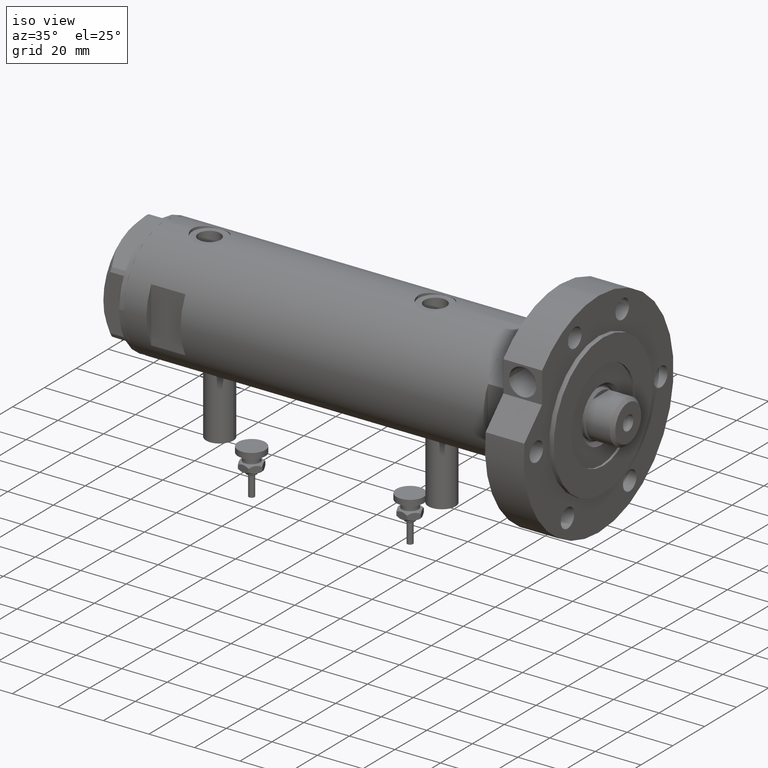
[diagram: clean part render]
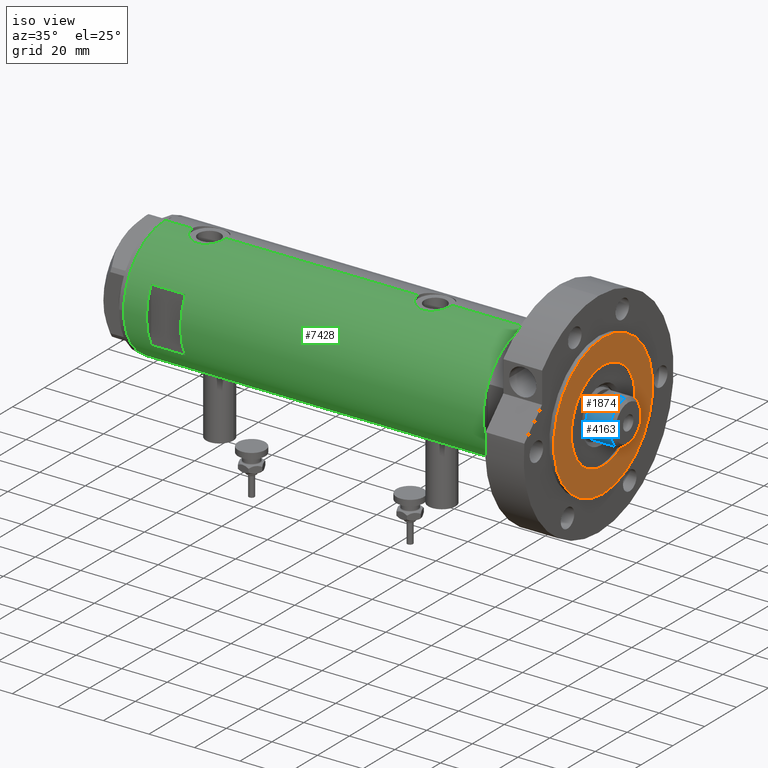
[diagram: same view with three faces highlighted in distinct colors, each labeled with its STEP entity id]
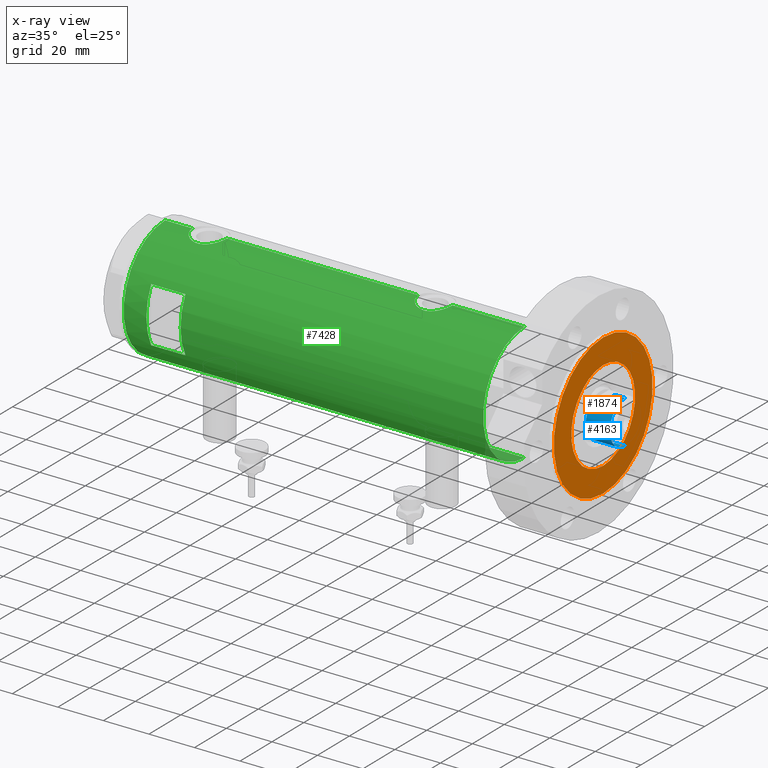
[diagram: x-ray of the same camera — body ghosted, the three highlighted faces saturated]
A machine part, iso view with three faces highlighted in distinct colors.
The next image is the same camera in x-ray (body ghosted, the three faces saturated) — at least one of them is partly hidden behind the body in this view.
Their STEP definitions:

[orange] entity #1874 — the highlighted planar face has unit normal (1, 0, -0).
#185 = VERTEX_POINT ( 'NONE', #7842 ) ;
#858 = CARTESIAN_POINT ( 'NONE',  ( 0.000000000000000000, 0.000000000000000000, 19.00000000000000355 ) ) ;
#931 = CARTESIAN_POINT ( 'NONE',  ( 0.000000000000000000, 0.000000000000000000, 19.00000000000000355 ) ) ;
#1252 = EDGE_CURVE ( 'NONE', #185, #3345, #3423, .T. ) ;
#1304 = EDGE_CURVE ( 'NONE', #3345, #185, #3547, .T. ) ;
#1526 = DIRECTION ( 'NONE',  ( 0.000000000000000000, 0.000000000000000000, 1.000000000000000000 ) ) ;
#1654 = CARTESIAN_POINT ( 'NONE',  ( 20.00000000000000000, 0.000000000000000000, 19.00000000000000355 ) ) ;
#1834 = CIRCLE ( 'NONE', #2470, 31.00000000000000711 ) ;
#1874 = ADVANCED_FACE ( 'NONE', ( #3766, #6315 ), #2563, .T. ) ;
#2054 = CARTESIAN_POINT ( 'NONE',  ( 0.000000000000000000, 0.000000000000000000, 19.00000000000000355 ) ) ;
#2205 = EDGE_LOOP ( 'NONE', ( #3229, #6290 ) ) ;
#2354 = CIRCLE ( 'NONE', #6167, 31.00000000000000711 ) ;
#2470 = AXIS2_PLACEMENT_3D ( 'NONE', #931, #5157, #5111 ) ;
#2495 = EDGE_LOOP ( 'NONE', ( #4160, #5123 ) ) ;
#2563 = PLANE ( 'NONE',  #3946 ) ;
#3033 = VERTEX_POINT ( 'NONE', #4011 ) ;
#3165 = DIRECTION ( 'NONE',  ( 1.000000000000000000, 0.000000000000000000, -0.000000000000000000 ) ) ;
#3229 = ORIENTED_EDGE ( 'NONE', *, *, #1304, .F. ) ;
#3246 = VERTEX_POINT ( 'NONE', #3701 ) ;
#3345 = VERTEX_POINT ( 'NONE', #1654 ) ;
#3423 = CIRCLE ( 'NONE', #7025, 20.00000000000000000 ) ;
#3547 = CIRCLE ( 'NONE', #4320, 20.00000000000000000 ) ;
#3628 = DIRECTION ( 'NONE',  ( 1.000000000000000000, 0.000000000000000000, 0.000000000000000000 ) ) ;
#3701 = CARTESIAN_POINT ( 'NONE',  ( 31.00000000000000711, 3.796405077356795904E-15, 19.00000000000000355 ) ) ;
#3766 = FACE_BOUND ( 'NONE', #2205, .T. ) ;
#3946 = AXIS2_PLACEMENT_3D ( 'NONE', #2054, #4389, #3165 ) ;
#4011 = CARTESIAN_POINT ( 'NONE',  ( -31.00000000000000711, 0.000000000000000000, 19.00000000000000355 ) ) ;
#4160 = ORIENTED_EDGE ( 'NONE', *, *, #6649, .T. ) ;
#4320 = AXIS2_PLACEMENT_3D ( 'NONE', #6863, #7312, #5622 ) ;
#4389 = DIRECTION ( 'NONE',  ( 0.000000000000000000, 0.000000000000000000, 1.000000000000000000 ) ) ;
#4424 = DIRECTION ( 'NONE',  ( 1.000000000000000000, 0.000000000000000000, 0.000000000000000000 ) ) ;
#4904 = DIRECTION ( 'NONE',  ( 0.000000000000000000, 0.000000000000000000, 1.000000000000000000 ) ) ;
#5111 = DIRECTION ( 'NONE',  ( 1.000000000000000000, 0.000000000000000000, 0.000000000000000000 ) ) ;
#5123 = ORIENTED_EDGE ( 'NONE', *, *, #7117, .T. ) ;
#5157 = DIRECTION ( 'NONE',  ( 0.000000000000000000, 0.000000000000000000, 1.000000000000000000 ) ) ;
#5622 = DIRECTION ( 'NONE',  ( 1.000000000000000000, 0.000000000000000000, 0.000000000000000000 ) ) ;
#6167 = AXIS2_PLACEMENT_3D ( 'NONE', #858, #1526, #4424 ) ;
#6290 = ORIENTED_EDGE ( 'NONE', *, *, #1252, .F. ) ;
#6315 = FACE_OUTER_BOUND ( 'NONE', #2495, .T. ) ;
#6649 = EDGE_CURVE ( 'NONE', #3033, #3246, #1834, .T. ) ;
#6863 = CARTESIAN_POINT ( 'NONE',  ( 0.000000000000000000, 0.000000000000000000, 19.00000000000000355 ) ) ;
#7025 = AXIS2_PLACEMENT_3D ( 'NONE', #7397, #4904, #3628 ) ;
#7117 = EDGE_CURVE ( 'NONE', #3246, #3033, #2354, .T. ) ;
#7312 = DIRECTION ( 'NONE',  ( 0.000000000000000000, 0.000000000000000000, 1.000000000000000000 ) ) ;
#7397 = CARTESIAN_POINT ( 'NONE',  ( 0.000000000000000000, 0.000000000000000000, 19.00000000000000355 ) ) ;
#7842 = CARTESIAN_POINT ( 'NONE',  ( -20.00000000000000000, 2.449293598294706513E-15, 19.00000000000000355 ) ) ;

[blue] entity #4163 — the highlighted cylindrical surface (edge-blend (fillet) strip) has radius 9.5 mm, axis along (-1, -0, 0).
#58 = VERTEX_POINT ( 'NONE', #2033 ) ;
#226 = CIRCLE ( 'NONE', #5994, 9.500000000000001776 ) ;
#231 = CARTESIAN_POINT ( 'NONE',  ( 0.000000000000000000, 0.000000000000000000, 167.6000000000000227 ) ) ;
#362 = VECTOR ( 'NONE', #472, 1000.000000000000000 ) ;
#463 = ORIENTED_EDGE ( 'NONE', *, *, #2480, .F. ) ;
#472 = DIRECTION ( 'NONE',  ( -0.000000000000000000, -0.000000000000000000, -1.000000000000000000 ) ) ;
#861 = DIRECTION ( 'NONE',  ( 1.000000000000000000, 0.000000000000000000, 0.000000000000000000 ) ) ;
#892 = CARTESIAN_POINT ( 'NONE',  ( -9.500000000000001776, 0.000000000000000000, 173.6000000000000227 ) ) ;
#901 = VERTEX_POINT ( 'NONE', #6189 ) ;
#912 = DIRECTION ( 'NONE',  ( 0.000000000000000000, 0.000000000000000000, 1.000000000000000000 ) ) ;
#952 = CARTESIAN_POINT ( 'NONE',  ( 0.000000000000000000, 0.000000000000000000, 173.6000000000000227 ) ) ;
#955 = CARTESIAN_POINT ( 'NONE',  ( -7.982950582334829015, -5.150000000000001243, 173.6000000000000227 ) ) ;
#1081 = EDGE_CURVE ( 'NONE', #2884, #1855, #226, .T. ) ;
#1098 = EDGE_CURVE ( 'NONE', #1200, #58, #3514, .T. ) ;
#1145 = LINE ( 'NONE', #6673, #4315 ) ;
#1163 = EDGE_CURVE ( 'NONE', #58, #5889, #2038, .T. ) ;
#1200 = VERTEX_POINT ( 'NONE', #1768 ) ;
#1530 = AXIS2_PLACEMENT_3D ( 'NONE', #231, #912, #5226 ) ;
#1581 = AXIS2_PLACEMENT_3D ( 'NONE', #7421, #1880, #7362 ) ;
#1590 = ORIENTED_EDGE ( 'NONE', *, *, #4227, .T. ) ;
#1611 = CARTESIAN_POINT ( 'NONE',  ( 7.982950582334834344, -5.150000000000034994, 167.6000000000000227 ) ) ;
#1732 = DIRECTION ( 'NONE',  ( 1.000000000000000000, 0.000000000000000000, 0.000000000000000000 ) ) ;
#1768 = CARTESIAN_POINT ( 'NONE',  ( -7.982950582334825462, -5.150000000000003020, 173.6000000000000227 ) ) ;
#1800 = ORIENTED_EDGE ( 'NONE', *, *, #1163, .T. ) ;
#1855 = VERTEX_POINT ( 'NONE', #3185 ) ;
#1880 = DIRECTION ( 'NONE',  ( 0.000000000000000000, 0.000000000000000000, 1.000000000000000000 ) ) ;
#1998 = CARTESIAN_POINT ( 'NONE',  ( 9.500000000000001776, 1.163414459189985682E-15, 173.6000000000000227 ) ) ;
#2033 = CARTESIAN_POINT ( 'NONE',  ( -7.982950582334825462, -5.150000000000042988, 167.6000000000000227 ) ) ;
#2038 = CIRCLE ( 'NONE', #1530, 9.500000000000001776 ) ;
#2069 = EDGE_CURVE ( 'NONE', #2992, #1200, #4188, .T. ) ;
#2454 = ORIENTED_EDGE ( 'NONE', *, *, #6101, .T. ) ;
#2480 = EDGE_CURVE ( 'NONE', #5648, #5889, #1145, .T. ) ;
#2655 = AXIS2_PLACEMENT_3D ( 'NONE', #952, #6977, #861 ) ;
#2659 = DIRECTION ( 'NONE',  ( -1.000000000000000000, 0.000000000000000000, 0.000000000000000000 ) ) ;
#2742 = CARTESIAN_POINT ( 'NONE',  ( 0.000000000000000000, 0.000000000000000000, 173.6000000000000227 ) ) ;
#2884 = VERTEX_POINT ( 'NONE', #3020 ) ;
#2992 = VERTEX_POINT ( 'NONE', #3101 ) ;
#3020 = CARTESIAN_POINT ( 'NONE',  ( 9.500000000000001776, 1.163414459189985682E-15, 178.2000000000000171 ) ) ;
#3101 = CARTESIAN_POINT ( 'NONE',  ( -9.500000000000000000, 0.000000000000000000, 173.6000000000000227 ) ) ;
#3185 = CARTESIAN_POINT ( 'NONE',  ( -9.500000000000001776, 0.000000000000000000, 178.2000000000000171 ) ) ;
#3328 = CIRCLE ( 'NONE', #1581, 9.500000000000000000 ) ;
#3514 = LINE ( 'NONE', #955, #362 ) ;
#3613 = ORIENTED_EDGE ( 'NONE', *, *, #2069, .T. ) ;
#3755 = CARTESIAN_POINT ( 'NONE',  ( 7.982950582334832568, -5.149999999999997691, 173.6000000000000227 ) ) ;
#3758 = DIRECTION ( 'NONE',  ( -0.000000000000000000, -0.000000000000000000, -1.000000000000000000 ) ) ;
#3937 = LINE ( 'NONE', #892, #5887 ) ;
#3964 = VECTOR ( 'NONE', #3758, 1000.000000000000000 ) ;
#4050 = ORIENTED_EDGE ( 'NONE', *, *, #1081, .T. ) ;
#4075 = DIRECTION ( 'NONE',  ( -0.000000000000000000, -0.000000000000000000, -1.000000000000000000 ) ) ;
#4163 = ADVANCED_FACE ( 'NONE', ( #4623 ), #7591, .T. ) ;
#4188 = CIRCLE ( 'NONE', #2655, 9.500000000000000000 ) ;
#4227 = EDGE_CURVE ( 'NONE', #1855, #2992, #3937, .T. ) ;
#4315 = VECTOR ( 'NONE', #4075, 1000.000000000000000 ) ;
#4479 = EDGE_CURVE ( 'NONE', #2884, #901, #7472, .T. ) ;
#4623 = FACE_OUTER_BOUND ( 'NONE', #7480, .T. ) ;
#4675 = CARTESIAN_POINT ( 'NONE',  ( 0.000000000000000000, 0.000000000000000000, 178.2000000000000171 ) ) ;
#5226 = DIRECTION ( 'NONE',  ( 1.000000000000000000, 0.000000000000000000, 0.000000000000000000 ) ) ;
#5272 = DIRECTION ( 'NONE',  ( 0.000000000000000000, 0.000000000000000000, -1.000000000000000000 ) ) ;
#5648 = VERTEX_POINT ( 'NONE', #3755 ) ;
#5778 = ORIENTED_EDGE ( 'NONE', *, *, #4479, .F. ) ;
#5866 = DIRECTION ( 'NONE',  ( -0.000000000000000000, -0.000000000000000000, -1.000000000000000000 ) ) ;
#5887 = VECTOR ( 'NONE', #5866, 1000.000000000000000 ) ;
#5889 = VERTEX_POINT ( 'NONE', #1611 ) ;
#5994 = AXIS2_PLACEMENT_3D ( 'NONE', #4675, #5272, #1732 ) ;
#6101 = EDGE_CURVE ( 'NONE', #5648, #901, #3328, .T. ) ;
#6189 = CARTESIAN_POINT ( 'NONE',  ( 9.500000000000000000, 1.163414459189985485E-15, 173.6000000000000227 ) ) ;
#6463 = DIRECTION ( 'NONE',  ( -0.000000000000000000, -0.000000000000000000, -1.000000000000000000 ) ) ;
#6524 = AXIS2_PLACEMENT_3D ( 'NONE', #2742, #6463, #2659 ) ;
#6673 = CARTESIAN_POINT ( 'NONE',  ( 7.982950582334832568, -5.149999999999997691, 173.6000000000000227 ) ) ;
#6977 = DIRECTION ( 'NONE',  ( 0.000000000000000000, 0.000000000000000000, 1.000000000000000000 ) ) ;
#7362 = DIRECTION ( 'NONE',  ( 1.000000000000000000, 0.000000000000000000, 0.000000000000000000 ) ) ;
#7421 = CARTESIAN_POINT ( 'NONE',  ( 0.000000000000000000, 0.000000000000000000, 173.6000000000000227 ) ) ;
#7472 = LINE ( 'NONE', #1998, #3964 ) ;
#7480 = EDGE_LOOP ( 'NONE', ( #5778, #4050, #1590, #3613, #7913, #1800, #463, #2454 ) ) ;
#7591 = CYLINDRICAL_SURFACE ( 'NONE', #6524, 9.500000000000001776 ) ;
#7913 = ORIENTED_EDGE ( 'NONE', *, *, #1098, .T. ) ;

[green] entity #7428 — the highlighted cylindrical surface (partial cylindrical patch) has radius 26 mm, axis along (-1, -0, 0).
#23 = ORIENTED_EDGE ( 'NONE', *, *, #3038, .T. ) ;
#56 = CARTESIAN_POINT ( 'NONE',  ( 25.27534302296961854, -6.097250460344746159, -35.37590386902926554 ) ) ;
#64 = CARTESIAN_POINT ( 'NONE',  ( 25.98569226047905545, -0.9886551788957260722, 51.99917623399824151 ) ) ;
#92 = CARTESIAN_POINT ( 'NONE',  ( 25.72912156655465665, -3.765948295762491238, -46.25442975399223400 ) ) ;
#99 = ORIENTED_EDGE ( 'NONE', *, *, #2913, .F. ) ;
#187 = CARTESIAN_POINT ( 'NONE',  ( 25.48871066912673200, -5.133852125086511009, -45.22290306743978050 ) ) ;
#220 = CARTESIAN_POINT ( 'NONE',  ( 25.93085545515512891, -1.956676574435509686, -32.49272963169732265 ) ) ;
#232 = CARTESIAN_POINT ( 'NONE',  ( -26.00000000000000355, 3.184077527325983904E-15, -48.90000000000001279 ) ) ;
#245 = DIRECTION ( 'NONE',  ( -0.000000000000000000, -4.625929269271486900E-15, 1.000000000000000000 ) ) ;
#264 = CARTESIAN_POINT ( 'NONE',  ( -25.23763877699556701, -6.249927116972441965, 54.74164472334533116 ) ) ;
#276 = LINE ( 'NONE', #3299, #5608 ) ;
#309 = VERTEX_POINT ( 'NONE', #962 ) ;
#312 = CARTESIAN_POINT ( 'NONE',  ( -25.49846181844015192, -5.083495422175122513, 58.59177503382597507 ) ) ;
#341 = CARTESIAN_POINT ( 'NONE',  ( -25.99999999999998934, -0.4144764235405737907, -36.39999999999999147 ) ) ;
#351 = CARTESIAN_POINT ( 'NONE',  ( -25.74330903162726614, -3.648508829439214285, 60.02867714715799963 ) ) ;
#394 = VERTEX_POINT ( 'NONE', #526 ) ;
#397 = LINE ( 'NONE', #5848, #728 ) ;
#427 = CARTESIAN_POINT ( 'NONE',  ( -25.24765475072630139, -6.209883762780014749, -41.83321815644903552 ) ) ;
#433 = VERTEX_POINT ( 'NONE', #1816 ) ;
#462 = VERTEX_POINT ( 'NONE', #981 ) ;
#499 = CARTESIAN_POINT ( 'NONE',  ( -25.71926338401909362, -3.813768894920912977, -37.69427860166183564 ) ) ;
#520 = FACE_OUTER_BOUND ( 'NONE', #4012, .T. ) ;
#526 = CARTESIAN_POINT ( 'NONE',  ( 26.00000000000000355, -7.221007372182803218E-17, 51.95000000000000284 ) ) ;
#546 = B_SPLINE_CURVE_WITH_KNOTS ( 'NONE', 3,
 ( #5293, #7733, #4580, #1470, #2703, #3893, #4662, #5753, #2860, #5793, #3321, #5208, #845, #7087, #7123, #5252, #7048, #4066, #1560, #6341, #3276, #5171, #6427, #5837, #7594, #2785, #3413, #2121, #4541, #3533, #2358, #7849, #6162, #1682, #4148, #6552, #1309, #7232, #702, #64, #3736, #6192 ),
 .UNSPECIFIED., .F., .F.,
 ( 4, 2, 2, 2, 2, 2, 2, 2, 2, 2, 2, 2, 2, 2, 2, 2, 2, 2, 2, 2, 4 ),
 ( 0.02357432247332888128, 0.02504731828495720264, 0.02652031409658552746, 0.02799330990821384882, 0.02946630571984217017, 0.03020280362565634646, 0.03093930153147052275, 0.03241229734309883370, 0.03388529315472715159, 0.03462179106054130706, 0.03535828896635546947, 0.03683128477798380818, 0.03756778268379798447, 0.03830428058961215382, 0.03977727640124052721, 0.04125027221286890755, 0.04198677011868309772, 0.04272326802449730176, 0.04419626383612570292, 0.04566925964775411101, 0.04714225545938251910 ),
 .UNSPECIFIED. ) ;
#588 = CARTESIAN_POINT ( 'NONE',  ( -26.00000000000000355, 3.184081677783118585E-15, -78.95000000000000284 ) ) ;
#629 = LINE ( 'NONE', #1882, #4873 ) ;
#665 = CARTESIAN_POINT ( 'NONE',  ( 25.30930190055640239, -5.959775463244125326, -44.32974043478029103 ) ) ;
#692 = CARTESIAN_POINT ( 'NONE',  ( 25.17510548814053095, -6.503212750695464450, -35.98238212184651275 ) ) ;
#702 = CARTESIAN_POINT ( 'NONE',  ( 25.93098857934041135, -1.953835360821271960, 52.19226335297440755 ) ) ;
#722 = ORIENTED_EDGE ( 'NONE', *, *, #3288, .T. ) ;
#728 = VECTOR ( 'NONE', #7653, 1000.000000000000000 ) ;
#736 = CARTESIAN_POINT ( 'NONE',  ( -26.00000000000000355, 3.184081677783118585E-15, -78.95000000000000284 ) ) ;
#779 = CARTESIAN_POINT ( 'NONE',  ( 25.03461301890608581, -7.019803056070506031, -42.40183183106896792 ) ) ;
#780 = CARTESIAN_POINT ( 'NONE',  ( -26.00000000000000355, 3.184077527313362130E-15, 48.70000000000000995 ) ) ;
#821 = CARTESIAN_POINT ( 'NONE',  ( 24.96970063328116751, -7.247045583599693863, -41.69719214854801237 ) ) ;
#822 = CARTESIAN_POINT ( 'NONE',  ( -25.78943824387524231, -3.306687742228910487, 49.64245861216535616 ) ) ;
#845 = CARTESIAN_POINT ( 'NONE',  ( 25.27534302296961854, -6.097250460344744383, 63.82409613097077283 ) ) ;
#915 = CIRCLE ( 'NONE', #6153, 26.00000000000000355 ) ;
#943 = CARTESIAN_POINT ( 'NONE',  ( -25.85288666140181491, -2.767917424206677079, -48.25742209989675047 ) ) ;
#962 = CARTESIAN_POINT ( 'NONE',  ( 12.12435565298214080, -23.00000000000000355, 68.95000000000003126 ) ) ;
#965 = ORIENTED_EDGE ( 'NONE', *, *, #4110, .T. ) ;
#975 = CARTESIAN_POINT ( 'NONE',  ( -25.28680988956730147, -6.048472998962283853, -44.27627694188245755 ) ) ;
#981 = CARTESIAN_POINT ( 'NONE',  ( -26.00000000000000355, 3.184077527325983904E-15, -48.90000000000001279 ) ) ;
#1018 = CARTESIAN_POINT ( 'NONE',  ( -25.25769689814629615, -6.168504065326074759, -43.67646635296746638 ) ) ;
#1020 = DIRECTION ( 'NONE',  ( 0.000000000000000000, 0.000000000000000000, 1.000000000000000000 ) ) ;
#1063 = CARTESIAN_POINT ( 'NONE',  ( -25.92425332714050867, -2.018894156999445411, -48.57896120675330565 ) ) ;
#1094 = CARTESIAN_POINT ( 'NONE',  ( -25.67063510297210271, -4.128418051804850997, -37.95317424728735034 ) ) ;
#1146 = ORIENTED_EDGE ( 'NONE', *, *, #6512, .T. ) ;
#1301 = CARTESIAN_POINT ( 'NONE',  ( 25.78993643992928853, -3.329561377902402697, -33.01178439721263658 ) ) ;
#1309 = CARTESIAN_POINT ( 'NONE',  ( 25.78902964777116580, -3.336582972512951883, 52.71524159542262566 ) ) ;
#1332 = CARTESIAN_POINT ( 'NONE',  ( 25.59665538672496155, -4.580438224580676732, -33.79110872287610334 ) ) ;
#1414 = EDGE_CURVE ( 'NONE', #3090, #309, #7456, .T. ) ;
#1430 = CARTESIAN_POINT ( 'NONE',  ( 25.89059789403177447, -2.425642437452257383, -32.63622552757698969 ) ) ;
#1431 = CARTESIAN_POINT ( 'NONE',  ( -25.31551596256916525, -5.928819821281959612, 52.92988508095918831 ) ) ;
#1462 = DIRECTION ( 'NONE',  ( 1.776356839400250465E-15, 1.000000000000000000, 4.536969091016264466E-15 ) ) ;
#1470 = CARTESIAN_POINT ( 'NONE',  ( 25.93085545515512536, -1.956676574435512794, 66.70727036830264467 ) ) ;
#1508 = VERTEX_POINT ( 'NONE', #5102 ) ;
#1558 = CARTESIAN_POINT ( 'NONE',  ( -25.81232680456767170, -3.137210741985124507, -37.22886342778421920 ) ) ;
#1560 = CARTESIAN_POINT ( 'NONE',  ( 24.91324908721446718, -7.438459228814661373, 60.44017499374191260 ) ) ;
#1569 = CARTESIAN_POINT ( 'NONE',  ( -25.67063510297210271, -4.128418051804841227, 59.64682575271267240 ) ) ;
#1582 = EDGE_CURVE ( 'NONE', #5187, #462, #2971, .T. ) ;
#1602 = CARTESIAN_POINT ( 'NONE',  ( 26.00000000000000355, -3.975028449552882818E-20, 66.95000000000000284 ) ) ;
#1610 = CARTESIAN_POINT ( 'NONE',  ( -25.31538696791480447, -5.929326713517952818, 56.96796632208098998 ) ) ;
#1635 = CARTESIAN_POINT ( 'NONE',  ( -26.00000000000000000, -0.4086738135806058381, -48.90000000000002700 ) ) ;
#1637 = LINE ( 'NONE', #7000, #1820 ) ;
#1681 = CARTESIAN_POINT ( 'NONE',  ( -25.38744165544136777, -5.612847683295916212, -45.42987583238478067 ) ) ;
#1682 = CARTESIAN_POINT ( 'NONE',  ( 25.59500516383205948, -4.575229401795795958, 53.50212244934583339 ) ) ;
#1720 = CARTESIAN_POINT ( 'NONE',  ( -25.81160981652327280, -3.129523010631800606, -48.06392973722076079 ) ) ;
#1773 = CYLINDRICAL_SURFACE ( 'NONE', #3480, 26.00000000000000355 ) ;
#1816 = CARTESIAN_POINT ( 'NONE',  ( 26.00000000000000355, -3.975025925197986111E-20, -32.25000000000000000 ) ) ;
#1820 = VECTOR ( 'NONE', #1020, 1000.000000000000000 ) ;
#1882 = CARTESIAN_POINT ( 'NONE',  ( 26.00000000000000355, 0.000000000000000000, -78.95000000000000284 ) ) ;
#1925 = CARTESIAN_POINT ( 'NONE',  ( 25.59500516383205593, -4.575229401795787965, -45.69787755065420498 ) ) ;
#2001 = CARTESIAN_POINT ( 'NONE',  ( 25.11243836838845667, -6.738202653785825724, -43.07956649155158146 ) ) ;
#2047 = CARTESIAN_POINT ( 'NONE',  ( 25.38109653984943748, -5.641393955635659374, -34.80180907551250158 ) ) ;
#2048 = CARTESIAN_POINT ( 'NONE',  ( -25.81232680456767170, -3.137210741985118290, 60.37113657221578933 ) ) ;
#2089 = CARTESIAN_POINT ( 'NONE',  ( 24.89854802586676286, -7.487520416261737921, -39.25184316422095065 ) ) ;
#2090 = CARTESIAN_POINT ( 'NONE',  ( -25.42977453177915947, -5.420307583276853691, 51.81187728206638354 ) ) ;
#2121 = CARTESIAN_POINT ( 'NONE',  ( 25.11243836838845667, -6.738202653785824836, 56.12043350844841427 ) ) ;
#2160 = CARTESIAN_POINT ( 'NONE',  ( 26.00000000000000355, 0.000000000000000000, -78.95000000000000284 ) ) ;
#2175 = CARTESIAN_POINT ( 'NONE',  ( -25.85288666140180780, -2.767917424206675747, 49.34257790010328648 ) ) ;
#2204 = CARTESIAN_POINT ( 'NONE',  ( -25.72076778631231164, -3.815670258243489599, -47.61687810531881127 ) ) ;
#2212 = CARTESIAN_POINT ( 'NONE',  ( -25.72076778631231164, -3.815670258243487378, 49.98312189468122568 ) ) ;
#2246 = CARTESIAN_POINT ( 'NONE',  ( -25.85385060263651269, -2.778671585188184689, -37.03685548695762009 ) ) ;
#2318 = CARTESIAN_POINT ( 'NONE',  ( -25.64593536028936072, -4.278686337618966995, -38.08968397039122067 ) ) ;
#2358 = CARTESIAN_POINT ( 'NONE',  ( 25.38125492692910967, -5.649348210287291394, 54.49305665653605502 ) ) ;
#2403 = EDGE_CURVE ( 'NONE', #6060, #4856, #3141, .T. ) ;
#2518 = CARTESIAN_POINT ( 'NONE',  ( 25.98599366666249466, -0.9828433289544072915, -32.29811598276526752 ) ) ;
#2549 = B_SPLINE_CURVE_WITH_KNOTS ( 'NONE', 3,
 ( #3814, #3696, #2518, #220, #1430, #1301, #6266, #1332, #4383, #4945, #2047, #6183, #56, #692, #7556, #7399, #4421, #2603, #3241, #2089, #3761, #6760, #5042, #6148, #821, #3114, #779, #2001, #6881, #665, #5688, #187, #2630, #1925, #5599, #92, #2556, #4994, #7441, #5082, #4468, #7514 ),
 .UNSPECIFIED., .F., .F.,
 ( 4, 2, 2, 2, 2, 2, 2, 2, 2, 2, 2, 2, 2, 2, 2, 2, 2, 2, 2, 2, 4 ),
 ( 0.02357432247332888128, 0.02504731828495719570, 0.02652031409658551359, 0.02799330990821382800, 0.02946630571984214589, 0.03020280362565630136, 0.03093930153147046030, 0.03241229734309879207, 0.03388529315472712383, 0.03462179106054129318, 0.03535828896635545560, 0.03683128477798380818, 0.03756778268379799834, 0.03830428058961218157, 0.03977727640124056885, 0.04125027221286896306, 0.04198677011868315323, 0.04272326802449734340, 0.04419626383612573067, 0.04566925964775411795, 0.04714225545938250522 ),
 .UNSPECIFIED. ) ;
#2556 = CARTESIAN_POINT ( 'NONE',  ( 25.78902964777116935, -3.336582972512946554, -46.48475840457737007 ) ) ;
#2603 = CARTESIAN_POINT ( 'NONE',  ( 24.92415241886515176, -7.401968919186680651, -38.51676462555185054 ) ) ;
#2630 = CARTESIAN_POINT ( 'NONE',  ( 25.52449676677459678, -4.953491517965876945, -45.38674491334075611 ) ) ;
#2703 = CARTESIAN_POINT ( 'NONE',  ( 25.89059789403177092, -2.425642437452263156, 66.56377447242300605 ) ) ;
#2734 = VERTEX_POINT ( 'NONE', #7116 ) ;
#2754 = CARTESIAN_POINT ( 'NONE',  ( -26.00000000000000355, -2.813058302341337106E-16, 61.20000000000000284 ) ) ;
#2782 = CARTESIAN_POINT ( 'NONE',  ( -25.31551596256916525, -5.928819821281963165, -44.67011491904084153 ) ) ;
#2785 = CARTESIAN_POINT ( 'NONE',  ( 25.01107424167500781, -7.102941973849612900, 57.02937151337422250 ) ) ;
#2796 = CARTESIAN_POINT ( 'NONE',  ( -25.99999999999998934, -0.4144764235405755670, 61.19999999999998153 ) ) ;
#2809 = ORIENTED_EDGE ( 'NONE', *, *, #3147, .F. ) ;
#2821 = CARTESIAN_POINT ( 'NONE',  ( -25.95218276861526263, -1.627663810194436067, -48.69850980387603556 ) ) ;
#2858 = CARTESIAN_POINT ( 'NONE',  ( -25.95206678899177888, -1.628763264760263230, -36.60199186669786542 ) ) ;
#2860 = CARTESIAN_POINT ( 'NONE',  ( 25.52567976009757089, -4.956266804246109103, 65.10019927459094902 ) ) ;
#2913 = EDGE_CURVE ( 'NONE', #2734, #1508, #3022, .T. ) ;
#2971 = LINE ( 'NONE', #588, #7810 ) ;
#2974 = CARTESIAN_POINT ( 'NONE',  ( -12.12435565298214080, -23.00000000000000355, 53.95000000000001705 ) ) ;
#3022 = CIRCLE ( 'NONE', #4319, 26.00000000000000355 ) ;
#3038 = EDGE_CURVE ( 'NONE', #5187, #5690, #6896, .T. ) ;
#3058 = CARTESIAN_POINT ( 'NONE',  ( 12.12435565298214080, -23.00000000000000355, -78.95000000000000284 ) ) ;
#3076 = CARTESIAN_POINT ( 'NONE',  ( 26.00000000000000355, 3.343657407582877388E-16, -47.25000000000000000 ) ) ;
#3083 = DIRECTION ( 'NONE',  ( 0.000000000000000000, 0.000000000000000000, 1.000000000000000000 ) ) ;
#3084 = CARTESIAN_POINT ( 'NONE',  ( -26.00000000000000000, -0.4086738135806028960, 48.70000000000000995 ) ) ;
#3085 = DIRECTION ( 'NONE',  ( 0.000000000000000000, 0.000000000000000000, 1.000000000000000000 ) ) ;
#3090 = VERTEX_POINT ( 'NONE', #4314 ) ;
#3113 = DIRECTION ( 'NONE',  ( 1.000000000000000000, 0.000000000000000000, 0.000000000000000000 ) ) ;
#3114 = CARTESIAN_POINT ( 'NONE',  ( 25.01107424167501136, -7.102941973849614676, -42.17062848662576613 ) ) ;
#3115 = CARTESIAN_POINT ( 'NONE',  ( 26.00000000000000355, 0.000000000000000000, -78.95000000000000284 ) ) ;
#3141 = B_SPLINE_CURVE_WITH_KNOTS ( 'NONE', 3,
 ( #780, #3084, #4946, #6184, #5266, #7557, #2175, #5183, #822, #2212, #7095, #5843, #6311, #2090, #4038, #1431, #6394, #3286, #5803, #3242, #264, #5084, #3953, #7515, #1610, #4512, #7055, #312, #4547, #3426, #4592, #3381, #1569, #7601, #351, #2048, #7699, #6474, #4633, #3997, #2796, #2754 ),
 .UNSPECIFIED., .F., .F.,
 ( 4, 2, 2, 2, 2, 2, 2, 2, 2, 2, 2, 2, 2, 2, 2, 2, 2, 2, 2, 2, 4 ),
 ( 0.01961238453869442941, 0.02083783025472767114, 0.02206327597076090941, 0.02267599882877753201, 0.02328872168679415461, 0.02451416740282739287, 0.02573961311886063114, 0.02696505883489386940, 0.02819050455092710766, 0.02880322740894371986, 0.02941595026696032858, 0.03064139598299354950, 0.03186684169902676694, 0.03309228741505998439, 0.03370501027307658271, 0.03431773313109318796, 0.03493045598910978627, 0.03554317884712639153, 0.03676862456315960898, 0.03799407027919282642, 0.03921951599522604387 ),
 .UNSPECIFIED. ) ;
#3147 = EDGE_CURVE ( 'NONE', #7534, #7569, #397, .T. ) ;
#3241 = CARTESIAN_POINT ( 'NONE',  ( 24.91324908721445652, -7.438459228814655155, -38.75982500625809024 ) ) ;
#3242 = CARTESIAN_POINT ( 'NONE',  ( -25.24022290516698419, -6.239518219915426656, 54.53402784061568553 ) ) ;
#3276 = CARTESIAN_POINT ( 'NONE',  ( 24.89478872726946079, -7.499966281647701294, 59.69821850634782123 ) ) ;
#3286 = CARTESIAN_POINT ( 'NONE',  ( -25.25769689814630325, -6.168504065326071206, 53.92353364703255636 ) ) ;
#3288 = EDGE_CURVE ( 'NONE', #5690, #5521, #276, .T. ) ;
#3299 = CARTESIAN_POINT ( 'NONE',  ( 26.00000000000000355, 0.000000000000000000, -78.95000000000000284 ) ) ;
#3321 = CARTESIAN_POINT ( 'NONE',  ( 25.38109653984944103, -5.641393955635662039, 64.39819092448752258 ) ) ;
#3352 = ORIENTED_EDGE ( 'NONE', *, *, #6737, .F. ) ;
#3371 = CARTESIAN_POINT ( 'NONE',  ( -25.57228991600092272, -4.705691472451704271, -46.78339690124655448 ) ) ;
#3381 = CARTESIAN_POINT ( 'NONE',  ( -25.64593536028936782, -4.278686337618957225, 59.51031602960879496 ) ) ;
#3411 = CARTESIAN_POINT ( 'NONE',  ( -25.78943824387523165, -3.306687742228911375, -47.95754138783466658 ) ) ;
#3413 = CARTESIAN_POINT ( 'NONE',  ( 25.03461301890608581, -7.019803056070502478, 56.79816816893102782 ) ) ;
#3426 = CARTESIAN_POINT ( 'NONE',  ( -25.57167894663061958, -4.701762988462087733, 59.07280450192418186 ) ) ;
#3427 = ORIENTED_EDGE ( 'NONE', *, *, #6514, .F. ) ;
#3469 = ORIENTED_EDGE ( 'NONE', *, *, #1582, .F. ) ;
#3478 = DIRECTION ( 'NONE',  ( 1.000000000000000000, 0.000000000000000000, 0.000000000000000000 ) ) ;
#3480 = AXIS2_PLACEMENT_3D ( 'NONE', #7103, #5961, #4166 ) ;
#3499 = CARTESIAN_POINT ( 'NONE',  ( -25.74330903162725903, -3.648508829439220946, -37.57132285284201600 ) ) ;
#3531 = CARTESIAN_POINT ( 'NONE',  ( -25.31538696791481868, -5.929326713517960812, -40.63203367791900433 ) ) ;
#3533 = CARTESIAN_POINT ( 'NONE',  ( 25.30930190055639883, -5.959775463244125326, 54.87025956521971892 ) ) ;
#3638 = CARTESIAN_POINT ( 'NONE',  ( 0.000000000000000000, 0.000000000000000000, 78.95000000000000284 ) ) ;
#3696 = CARTESIAN_POINT ( 'NONE',  ( 26.00000000000001066, -0.4910237949823163528, -32.25000000000000711 ) ) ;
#3727 = DIRECTION ( 'NONE',  ( -0.000000000000000000, 0.000000000000000000, -1.000000000000000000 ) ) ;
#3736 = CARTESIAN_POINT ( 'NONE',  ( 26.00000000000001066, -0.4982617809740563231, 51.95000000000000995 ) ) ;
#3744 = CARTESIAN_POINT ( 'NONE',  ( -26.00000000000000355, -2.813058302341337106E-16, 61.20000000000000284 ) ) ;
#3761 = CARTESIAN_POINT ( 'NONE',  ( 24.89478872726946079, -7.499966281647702182, -39.50178149365218871 ) ) ;
#3813 = ORIENTED_EDGE ( 'NONE', *, *, #1414, .F. ) ;
#3814 = CARTESIAN_POINT ( 'NONE',  ( 26.00000000000000355, -3.975025925197986111E-20, -32.25000000000000000 ) ) ;
#3893 = CARTESIAN_POINT ( 'NONE',  ( 25.78993643992928497, -3.329561377902408914, 66.18821560278735205 ) ) ;
#3953 = CARTESIAN_POINT ( 'NONE',  ( -25.24765475072630139, -6.209883762780005867, 55.76678184355100854 ) ) ;
#3987 = CARTESIAN_POINT ( 'NONE',  ( -25.99009752186832856, -0.8230863847107483533, -36.44082928593318371 ) ) ;
#3997 = CARTESIAN_POINT ( 'NONE',  ( -25.99009752186832500, -0.8230863847107482423, 61.15917071406682481 ) ) ;
#4012 = EDGE_LOOP ( 'NONE', ( #3469, #23, #722, #3352, #965, #5193, #1146, #99, #4470, #4670, #5910, #4059 ) ) ;
#4027 = CARTESIAN_POINT ( 'NONE',  ( -25.52190669608696183, -4.968444991210430040, -46.46341092192485434 ) ) ;
#4038 = CARTESIAN_POINT ( 'NONE',  ( -25.38744165544137132, -5.612847683295914436, 52.17012416761526339 ) ) ;
#4059 = ORIENTED_EDGE ( 'NONE', *, *, #4716, .F. ) ;
#4064 = CARTESIAN_POINT ( 'NONE',  ( -25.42977453177914882, -5.420307583276860797, -45.78812271793364630 ) ) ;
#4066 = CARTESIAN_POINT ( 'NONE',  ( 24.92415241886516242, -7.401968919186685092, 60.68323537444815940 ) ) ;
#4105 = CARTESIAN_POINT ( 'NONE',  ( -25.38662204309617465, -5.616507264474316585, -39.87800622280675356 ) ) ;
#4110 = EDGE_CURVE ( 'NONE', #433, #394, #5044, .T. ) ;
#4147 = CARTESIAN_POINT ( 'NONE',  ( -25.25025691038241860, -6.198787452305317025, -43.47441165395796503 ) ) ;
#4148 = CARTESIAN_POINT ( 'NONE',  ( 25.62983961939740496, -4.376509667782458202, 53.35441500957042393 ) ) ;
#4157 = B_SPLINE_CURVE_WITH_KNOTS ( 'NONE', 3,
 ( #232, #1635, #6465, #2821, #1063, #4578, #943, #1720, #3411, #2204, #7155, #3371, #4027, #4064, #1681, #2782, #975, #1018, #4147, #5835, #5330, #5292, #427, #4660, #3531, #4105, #7731, #5909, #7046, #6585, #7636, #2318, #1094, #499, #3499, #1558, #2246, #6506, #2858, #3987, #341, #5250 ),
 .UNSPECIFIED., .F., .F.,
 ( 4, 2, 2, 2, 2, 2, 2, 2, 2, 2, 2, 2, 2, 2, 2, 2, 2, 2, 2, 2, 4 ),
 ( 0.01961238453869445370, 0.02083783025472768849, 0.02206327597076092328, 0.02267599882877753895, 0.02328872168679415461, 0.02451416740282739287, 0.02573961311886063114, 0.02696505883489386593, 0.02819050455092710072, 0.02880322740894371292, 0.02941595026696031817, 0.03064139598299353562, 0.03186684169902675307, 0.03309228741505997051, 0.03370501027307658271, 0.03431773313109318796, 0.03493045598910979321, 0.03554317884712640541, 0.03676862456315962979, 0.03799407027919286112, 0.03921951599522608550 ),
 .UNSPECIFIED. ) ;
#4166 = DIRECTION ( 'NONE',  ( 1.000000000000000000, 0.000000000000000000, 0.000000000000000000 ) ) ;
#4276 = DIRECTION ( 'NONE',  ( 0.000000000000000000, 0.000000000000000000, 1.000000000000000000 ) ) ;
#4314 = CARTESIAN_POINT ( 'NONE',  ( 12.12435565298214080, -23.00000000000000355, 53.95000000000001705 ) ) ;
#4319 = AXIS2_PLACEMENT_3D ( 'NONE', #3638, #4802, #7257 ) ;
#4347 = LINE ( 'NONE', #736, #5654 ) ;
#4383 = CARTESIAN_POINT ( 'NONE',  ( 25.52567976009756379, -4.956266804246105551, -34.09980072540906093 ) ) ;
#4421 = CARTESIAN_POINT ( 'NONE',  ( 24.96672817551788270, -7.257586026187393458, -37.79615800278702409 ) ) ;
#4468 = CARTESIAN_POINT ( 'NONE',  ( 25.99999999999999645, -0.4982617809740603199, -47.24999999999999289 ) ) ;
#4470 = ORIENTED_EDGE ( 'NONE', *, *, #5723, .F. ) ;
#4512 = CARTESIAN_POINT ( 'NONE',  ( -25.38662204309617110, -5.616507264474310368, 57.72199377719326208 ) ) ;
#4541 = CARTESIAN_POINT ( 'NONE',  ( 25.17393786935995692, -6.507882790539421869, 55.68962666655968974 ) ) ;
#4547 = CARTESIAN_POINT ( 'NONE',  ( -25.52274351135605102, -4.960534548086199536, 58.75751745340734544 ) ) ;
#4578 = CARTESIAN_POINT ( 'NONE',  ( -25.87202607293666645, -2.583404329177997116, -48.34473666854512430 ) ) ;
#4580 = CARTESIAN_POINT ( 'NONE',  ( 25.98599366666249111, -0.9828433289544116214, 66.90188401723474954 ) ) ;
#4592 = CARTESIAN_POINT ( 'NONE',  ( -25.59645788645698872, -4.565358797148513226, 59.22330529203479443 ) ) ;
#4603 = DIRECTION ( 'NONE',  ( 0.000000000000000000, 0.000000000000000000, 1.000000000000000000 ) ) ;
#4627 = AXIS2_PLACEMENT_3D ( 'NONE', #6860, #245, #1462 ) ;
#4633 = CARTESIAN_POINT ( 'NONE',  ( -25.95206678899177888, -1.628763264760260565, 60.99800813330215732 ) ) ;
#4660 = CARTESIAN_POINT ( 'NONE',  ( -25.28632996747171902, -6.050474653715423479, -41.03088129158464881 ) ) ;
#4662 = CARTESIAN_POINT ( 'NONE',  ( 25.72873412774686486, -3.768477344985556421, 65.95287460144461988 ) ) ;
#4670 = ORIENTED_EDGE ( 'NONE', *, *, #2403, .F. ) ;
#4716 = EDGE_CURVE ( 'NONE', #462, #5046, #4157, .T. ) ;
#4802 = DIRECTION ( 'NONE',  ( 0.000000000000000000, 0.000000000000000000, 1.000000000000000000 ) ) ;
#4856 = VERTEX_POINT ( 'NONE', #3744 ) ;
#4873 = VECTOR ( 'NONE', #4944, 1000.000000000000000 ) ;
#4944 = DIRECTION ( 'NONE',  ( 0.000000000000000000, 0.000000000000000000, 1.000000000000000000 ) ) ;
#4945 = CARTESIAN_POINT ( 'NONE',  ( 25.41756773306326522, -5.475260495868973898, -34.61859126343051685 ) ) ;
#4946 = CARTESIAN_POINT ( 'NONE',  ( -25.99036913299955742, -0.8159609457881432659, 48.73968856968109264 ) ) ;
#4994 = CARTESIAN_POINT ( 'NONE',  ( 25.88994451797511331, -2.432613607265599498, -46.86140968713201005 ) ) ;
#5008 = CIRCLE ( 'NONE', #4627, 26.00000000000000355 ) ;
#5042 = CARTESIAN_POINT ( 'NONE',  ( 24.90947356773249766, -7.451722770779341865, -40.73190841828151321 ) ) ;
#5044 = LINE ( 'NONE', #3115, #5377 ) ;
#5046 = VERTEX_POINT ( 'NONE', #7249 ) ;
#5082 = CARTESIAN_POINT ( 'NONE',  ( 25.98569226047905190, -0.9886551788957271825, -47.20082376600176133 ) ) ;
#5084 = CARTESIAN_POINT ( 'NONE',  ( -25.23758491649666169, -6.250144606721704577, 55.36011699571807299 ) ) ;
#5092 = ORIENTED_EDGE ( 'NONE', *, *, #6216, .F. ) ;
#5102 = CARTESIAN_POINT ( 'NONE',  ( 26.00000000000000355, 0.000000000000000000, 78.95000000000000284 ) ) ;
#5153 = VERTEX_POINT ( 'NONE', #1602 ) ;
#5171 = CARTESIAN_POINT ( 'NONE',  ( 24.89475831528844907, -7.500067228253130658, 58.95662571746464664 ) ) ;
#5183 = CARTESIAN_POINT ( 'NONE',  ( -25.81160981652327280, -3.129523010631799718, 49.53607026277927616 ) ) ;
#5187 = VERTEX_POINT ( 'NONE', #7800 ) ;
#5193 = ORIENTED_EDGE ( 'NONE', *, *, #5769, .F. ) ;
#5208 = CARTESIAN_POINT ( 'NONE',  ( 25.31004928890826378, -5.952041021437455726, 64.01980599883506784 ) ) ;
#5250 = CARTESIAN_POINT ( 'NONE',  ( -26.00000000000000355, -6.335391871414786776E-16, -36.39999999999999858 ) ) ;
#5252 = CARTESIAN_POINT ( 'NONE',  ( 25.00829008792692321, -7.115081037226465455, 61.87301003740819993 ) ) ;
#5266 = CARTESIAN_POINT ( 'NONE',  ( -25.92425332714050867, -2.018894156999440526, 49.02103879324670288 ) ) ;
#5292 = CARTESIAN_POINT ( 'NONE',  ( -25.23758491649667235, -6.250144606721711682, -42.23988300428196396 ) ) ;
#5293 = CARTESIAN_POINT ( 'NONE',  ( 26.00000000000000355, -3.975028449552882818E-20, 66.95000000000000284 ) ) ;
#5330 = CARTESIAN_POINT ( 'NONE',  ( -25.23763877699558122, -6.249927116972450847, -42.85835527665468447 ) ) ;
#5377 = VECTOR ( 'NONE', #3085, 1000.000000000000000 ) ;
#5521 = VERTEX_POINT ( 'NONE', #3076 ) ;
#5599 = CARTESIAN_POINT ( 'NONE',  ( 25.62983961939740141, -4.376509667782454649, -45.84558499042960733 ) ) ;
#5608 = VECTOR ( 'NONE', #4603, 1000.000000000000000 ) ;
#5654 = VECTOR ( 'NONE', #3083, 1000.000000000000000 ) ;
#5688 = CARTESIAN_POINT ( 'NONE',  ( 25.38125492692910612, -5.649348210287294059, -44.70694334346394072 ) ) ;
#5690 = VERTEX_POINT ( 'NONE', #2160 ) ;
#5723 = EDGE_CURVE ( 'NONE', #4856, #2734, #1637, .T. ) ;
#5753 = CARTESIAN_POINT ( 'NONE',  ( 25.59665538672496865, -4.580438224580679396, 65.40889127712388529 ) ) ;
#5769 = EDGE_CURVE ( 'NONE', #5153, #394, #546, .T. ) ;
#5793 = CARTESIAN_POINT ( 'NONE',  ( 25.41756773306325456, -5.475260495868974786, 64.58140873656947178 ) ) ;
#5803 = CARTESIAN_POINT ( 'NONE',  ( -25.25025691038242570, -6.198787452305309920, 54.12558834604206481 ) ) ;
#5835 = CARTESIAN_POINT ( 'NONE',  ( -25.24022290516699485, -6.239518219915436426, -43.06597215938434431 ) ) ;
#5837 = CARTESIAN_POINT ( 'NONE',  ( 24.95200646071793926, -7.307522494171281302, 57.74392435812723079 ) ) ;
#5843 = CARTESIAN_POINT ( 'NONE',  ( -25.57228991600092627, -4.705691472451699831, 50.81660309875346826 ) ) ;
#5848 = CARTESIAN_POINT ( 'NONE',  ( -12.12435565298214080, -23.00000000000000355, -78.95000000000000284 ) ) ;
#5868 = AXIS2_PLACEMENT_3D ( 'NONE', #6447, #5932, #3478 ) ;
#5909 = CARTESIAN_POINT ( 'NONE',  ( -25.49846181844014126, -5.083495422175134060, -39.00822496617402635 ) ) ;
#5910 = ORIENTED_EDGE ( 'NONE', *, *, #6699, .F. ) ;
#5932 = DIRECTION ( 'NONE',  ( 0.000000000000000000, 0.000000000000000000, 1.000000000000000000 ) ) ;
#5961 = DIRECTION ( 'NONE',  ( 0.000000000000000000, 0.000000000000000000, 1.000000000000000000 ) ) ;
#6060 = VERTEX_POINT ( 'NONE', #6705 ) ;
#6148 = CARTESIAN_POINT ( 'NONE',  ( 24.95200646071794282, -7.307522494171283967, -41.45607564187277205 ) ) ;
#6153 = AXIS2_PLACEMENT_3D ( 'NONE', #6796, #3727, #3113 ) ;
#6162 = CARTESIAN_POINT ( 'NONE',  ( 25.52449676677458612, -4.953491517965881386, 53.81325508665923962 ) ) ;
#6183 = CARTESIAN_POINT ( 'NONE',  ( 25.31004928890824957, -5.952041021437452173, -35.18019400116495632 ) ) ;
#6184 = CARTESIAN_POINT ( 'NONE',  ( -25.95218276861526618, -1.627663810194429406, 48.90149019612395165 ) ) ;
#6192 = CARTESIAN_POINT ( 'NONE',  ( 26.00000000000000355, -7.221007372182803218E-17, 51.95000000000000284 ) ) ;
#6216 = EDGE_CURVE ( 'NONE', #7569, #3090, #5008, .T. ) ;
#6266 = CARTESIAN_POINT ( 'NONE',  ( 25.72873412774685775, -3.768477344985552424, -33.24712539855536164 ) ) ;
#6311 = CARTESIAN_POINT ( 'NONE',  ( -25.52190669608696183, -4.968444991210422934, 51.13658907807515419 ) ) ;
#6341 = CARTESIAN_POINT ( 'NONE',  ( 24.89854802586675930, -7.487520416261737033, 59.94815683577904508 ) ) ;
#6372 = VECTOR ( 'NONE', #7303, 1000.000000000000000 ) ;
#6394 = CARTESIAN_POINT ( 'NONE',  ( -25.28680988956730857, -6.048472998962280300, 53.32372305811759361 ) ) ;
#6427 = CARTESIAN_POINT ( 'NONE',  ( 24.90947356773250121, -7.451722770779340976, 58.46809158171851095 ) ) ;
#6447 = CARTESIAN_POINT ( 'NONE',  ( 0.000000000000000000, 0.000000000000000000, -78.95000000000000284 ) ) ;
#6465 = CARTESIAN_POINT ( 'NONE',  ( -25.99036913299956453, -0.8159609457881494832, -48.86031143031891588 ) ) ;
#6474 = CARTESIAN_POINT ( 'NONE',  ( -25.92364458890658696, -2.026637113504536458, 60.87630990691475574 ) ) ;
#6506 = CARTESIAN_POINT ( 'NONE',  ( -25.92364458890659762, -2.026637113504532017, -36.72369009308525278 ) ) ;
#6512 = EDGE_CURVE ( 'NONE', #5153, #1508, #629, .T. ) ;
#6514 = EDGE_CURVE ( 'NONE', #309, #7534, #915, .T. ) ;
#6552 = CARTESIAN_POINT ( 'NONE',  ( 25.72912156655465310, -3.765948295762495235, 52.94557024600777595 ) ) ;
#6585 = CARTESIAN_POINT ( 'NONE',  ( -25.57167894663063024, -4.701762988462101944, -38.52719549807584798 ) ) ;
#6699 = EDGE_CURVE ( 'NONE', #5046, #6060, #4347, .T. ) ;
#6705 = CARTESIAN_POINT ( 'NONE',  ( -26.00000000000000355, 3.184077527313362130E-15, 48.70000000000000995 ) ) ;
#6737 = EDGE_CURVE ( 'NONE', #433, #5521, #2549, .T. ) ;
#6760 = CARTESIAN_POINT ( 'NONE',  ( 24.89475831528845262, -7.500067228253130658, -40.24337428253534910 ) ) ;
#6796 = CARTESIAN_POINT ( 'NONE',  ( 0.000000000000000000, 0.000000000000000000, 68.95000000000003126 ) ) ;
#6860 = CARTESIAN_POINT ( 'NONE',  ( 0.000000000000000000, 0.000000000000000000, 53.95000000000012363 ) ) ;
#6881 = CARTESIAN_POINT ( 'NONE',  ( 25.17393786935995692, -6.507882790539420981, -43.51037333344031310 ) ) ;
#6896 = CIRCLE ( 'NONE', #5868, 26.00000000000000355 ) ;
#7000 = CARTESIAN_POINT ( 'NONE',  ( -26.00000000000000355, 3.184081677783118585E-15, -78.95000000000000284 ) ) ;
#7046 = CARTESIAN_POINT ( 'NONE',  ( -25.52274351135604391, -4.960534548086211970, -38.84248254659267729 ) ) ;
#7048 = CARTESIAN_POINT ( 'NONE',  ( 24.96672817551787560, -7.257586026187392569, 61.40384199721296454 ) ) ;
#7055 = CARTESIAN_POINT ( 'NONE',  ( -25.42883439573800430, -5.424786127492328802, 58.08081457260910696 ) ) ;
#7087 = CARTESIAN_POINT ( 'NONE',  ( 25.17510548814053450, -6.503212750695461786, 63.21761787815348299 ) ) ;
#7095 = CARTESIAN_POINT ( 'NONE',  ( -25.67167563980648382, -4.129238867693851844, 50.24065943568894710 ) ) ;
#7103 = CARTESIAN_POINT ( 'NONE',  ( 0.000000000000000000, 0.000000000000000000, -78.95000000000000284 ) ) ;
#7116 = CARTESIAN_POINT ( 'NONE',  ( -26.00000000000000355, 3.184081677783118585E-15, 78.95000000000000284 ) ) ;
#7123 = CARTESIAN_POINT ( 'NONE',  ( 25.11342038069227200, -6.734617143597204425, 62.78770695790495893 ) ) ;
#7155 = CARTESIAN_POINT ( 'NONE',  ( -25.67167563980648382, -4.129238867693854509, -47.35934056431105432 ) ) ;
#7214 = FACE_BOUND ( 'NONE', #7659, .T. ) ;
#7232 = CARTESIAN_POINT ( 'NONE',  ( 25.88994451797512397, -2.432613607265602162, 52.33859031286799279 ) ) ;
#7249 = CARTESIAN_POINT ( 'NONE',  ( -26.00000000000000355, -6.335391871414786776E-16, -36.39999999999999858 ) ) ;
#7257 = DIRECTION ( 'NONE',  ( 1.000000000000000000, 0.000000000000000000, 0.000000000000000000 ) ) ;
#7303 = DIRECTION ( 'NONE',  ( 0.000000000000000000, 0.000000000000000000, 1.000000000000000000 ) ) ;
#7399 = CARTESIAN_POINT ( 'NONE',  ( 25.00829008792691255, -7.115081037226466343, -37.32698996259182422 ) ) ;
#7428 = ADVANCED_FACE ( 'NONE', ( #520, #7214 ), #1773, .T. ) ;
#7441 = CARTESIAN_POINT ( 'NONE',  ( 25.93098857934040424, -1.953835360821274847, -47.00773664702559529 ) ) ;
#7456 = LINE ( 'NONE', #3058, #6372 ) ;
#7514 = CARTESIAN_POINT ( 'NONE',  ( 26.00000000000000355, 3.343657407582877388E-16, -47.25000000000000000 ) ) ;
#7515 = CARTESIAN_POINT ( 'NONE',  ( -25.28632996747171902, -6.050474653715411932, 56.56911870841537393 ) ) ;
#7534 = VERTEX_POINT ( 'NONE', #7905 ) ;
#7556 = CARTESIAN_POINT ( 'NONE',  ( 25.11342038069227200, -6.734617143597207978, -36.41229304209507234 ) ) ;
#7557 = CARTESIAN_POINT ( 'NONE',  ( -25.87202607293666645, -2.583404329177992675, 49.25526333145489133 ) ) ;
#7569 = VERTEX_POINT ( 'NONE', #2974 ) ;
#7594 = CARTESIAN_POINT ( 'NONE',  ( 24.96970063328116751, -7.247045583599690310, 57.50280785145197626 ) ) ;
#7601 = CARTESIAN_POINT ( 'NONE',  ( -25.71926338401908652, -3.813768894920905872, 59.90572139833817289 ) ) ;
#7636 = CARTESIAN_POINT ( 'NONE',  ( -25.59645788645699227, -4.565358797148523884, -38.37669470796522120 ) ) ;
#7653 = DIRECTION ( 'NONE',  ( -0.000000000000000000, -0.000000000000000000, -1.000000000000000000 ) ) ;
#7659 = EDGE_LOOP ( 'NONE', ( #5092, #2809, #3427, #3813 ) ) ;
#7699 = CARTESIAN_POINT ( 'NONE',  ( -25.85385060263650203, -2.778671585188186910, 60.56314451304238133 ) ) ;
#7731 = CARTESIAN_POINT ( 'NONE',  ( -25.42883439573801141, -5.424786127492342125, -39.51918542739093709 ) ) ;
#7733 = CARTESIAN_POINT ( 'NONE',  ( 26.00000000000000355, -0.4910237949823177406, 66.94999999999998863 ) ) ;
#7800 = CARTESIAN_POINT ( 'NONE',  ( -26.00000000000000355, 3.184081677783118585E-15, -78.95000000000000284 ) ) ;
#7810 = VECTOR ( 'NONE', #4276, 1000.000000000000000 ) ;
#7849 = CARTESIAN_POINT ( 'NONE',  ( 25.48871066912673200, -5.133852125086510121, 53.97709693256022234 ) ) ;
#7905 = CARTESIAN_POINT ( 'NONE',  ( -12.12435565298214080, -23.00000000000000355, 68.95000000000003126 ) ) ;